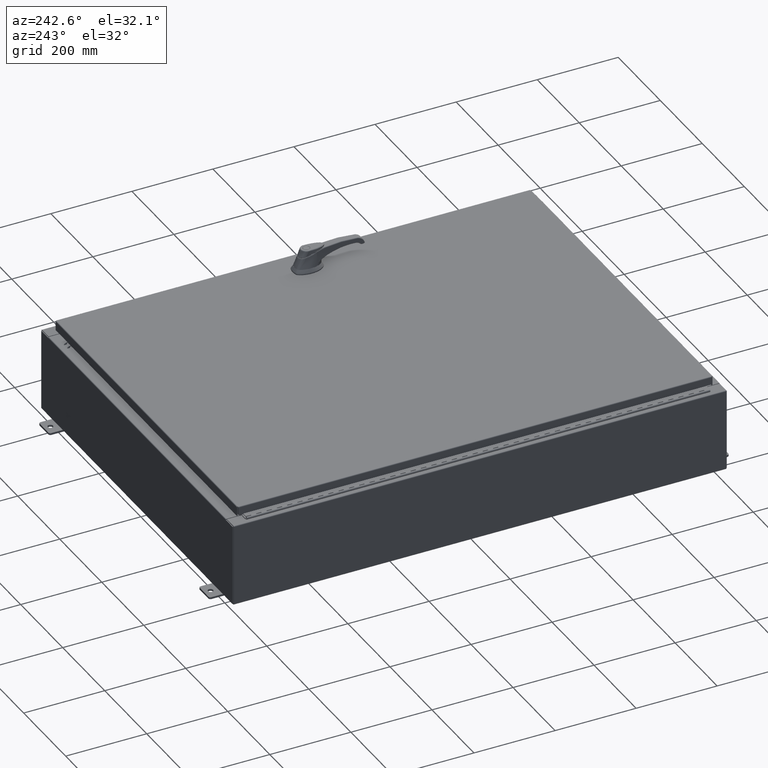
[diagram: clean part render]
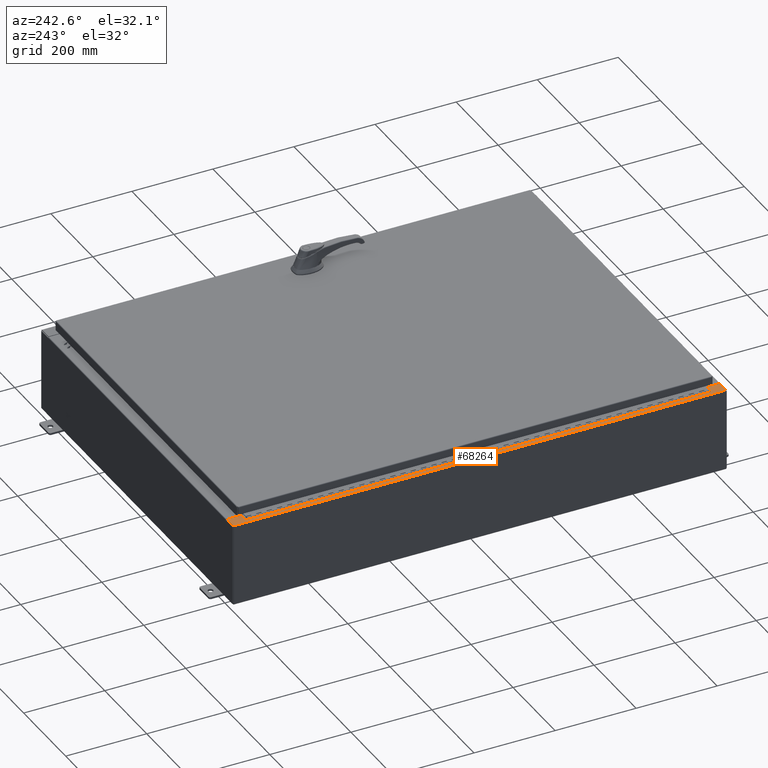
[diagram: same view with one face highlighted and labeled with its STEP entity id]
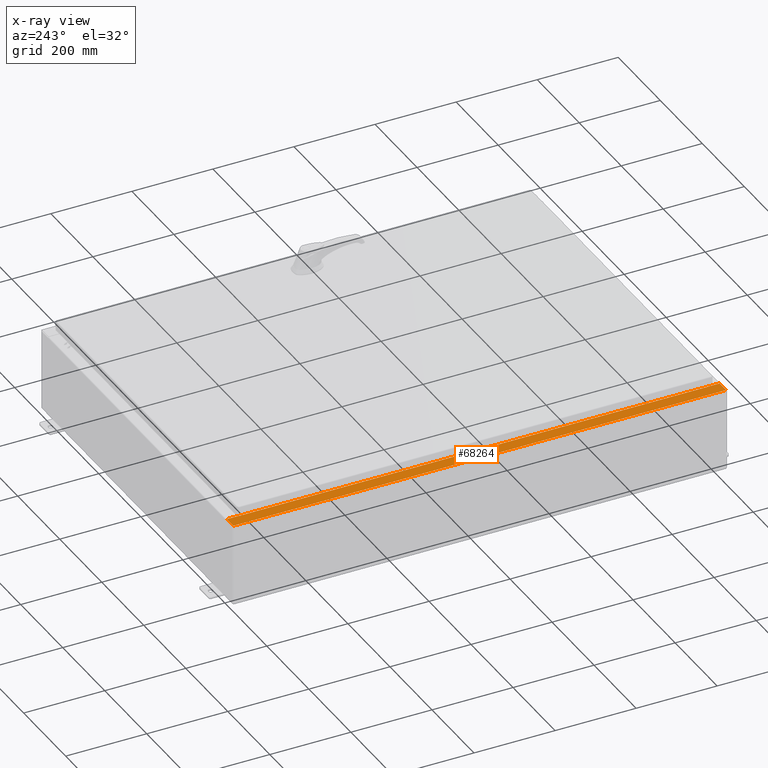
[diagram: x-ray of the same camera — body ghosted, the highlighted face saturated]
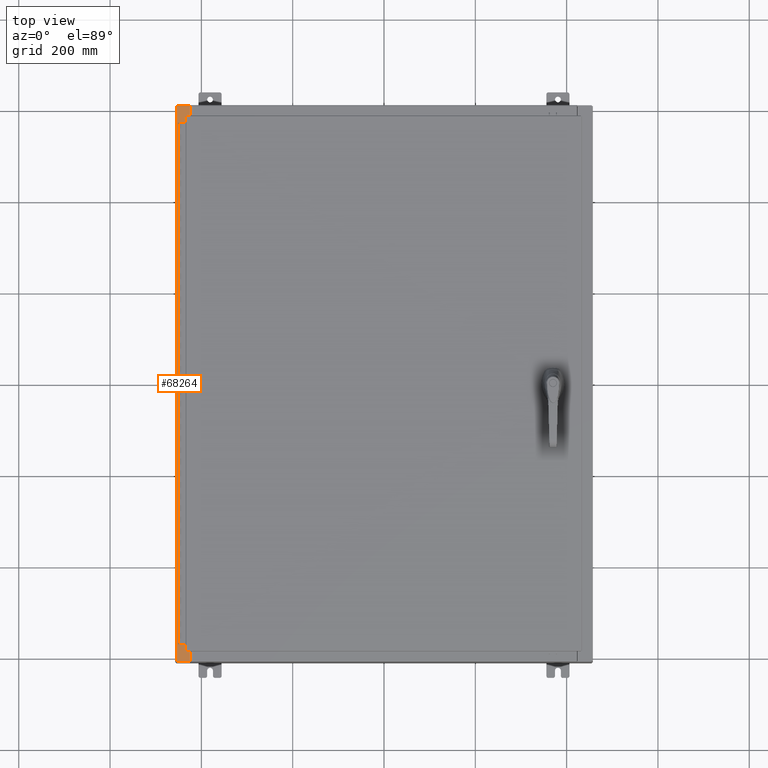
[diagram: same view with one face highlighted and labeled with its STEP entity id]
A machine part, auxiliary view. The second image highlights one B-rep face of the part: STEP entity #68264.
The next image is the same camera in x-ray: the body ghosted, the highlighted face saturated — about 0% of this face is hidden behind the body in this view.
A second angle (top view) of the same face is appended — the face is thin or edge-on in the first view.
In plain terms, the highlighted planar face has unit normal (0, 0, -1).
Its self-contained STEP definition (entity closure, byte-faithful):
#6 = ORIENTED_EDGE ( 'NONE', *, *, #49718, .F. ) ;
#2529 = VECTOR ( 'NONE', #53368, 39.37007874015748100 ) ;
#2785 = DIRECTION ( 'NONE',  ( 1.000000000000000000, 0.0000000000000000000, 0.0000000000000000000 ) ) ;
#4387 = AXIS2_PLACEMENT_3D ( 'NONE', #88872, #26740, #99336 ) ;
#8005 = CARTESIAN_POINT ( 'NONE',  ( -16.71270000000003400, 22.59374999999999300, 7.925300000000010700 ) ) ;
#10098 = EDGE_CURVE ( 'NONE', #55001, #114837, #109624, .T. ) ;
#10936 = CARTESIAN_POINT ( 'NONE',  ( -1.421168353416399100E-013, -23.92530000000005300, 7.925300000000127900 ) ) ;
#13496 = ORIENTED_EDGE ( 'NONE', *, *, #34460, .T. ) ;
#13978 = DIRECTION ( 'NONE',  ( -1.000000000000000000, -8.681145560800197900E-014, 2.170286390200049500E-014 ) ) ;
#16505 = EDGE_CURVE ( 'NONE', #120052, #20110, #25897, .T. ) ;
#16922 = AXIS2_PLACEMENT_3D ( 'NONE', #74960, #96369, #34199 ) ;
#17794 = VECTOR ( 'NONE', #94452, 39.37007874015748100 ) ;
#19841 = EDGE_CURVE ( 'NONE', #131938, #109818, #103211, .T. ) ;
#20029 = CIRCLE ( 'NONE', #4387, 0.01867499999999949400 ) ;
#20110 = VERTEX_POINT ( 'NONE', #78504 ) ;
#21037 = LINE ( 'NONE', #32281, #17794 ) ;
#22797 = DIRECTION ( 'NONE',  ( 1.000000000000000000, 0.0000000000000000000, 0.0000000000000000000 ) ) ;
#23756 = PLANE ( 'NONE',  #16922 ) ;
#24011 = ORIENTED_EDGE ( 'NONE', *, *, #90813, .F. ) ;
#24886 = LINE ( 'NONE', #94283, #73498 ) ;
#25788 = CARTESIAN_POINT ( 'NONE',  ( -16.69970000000003600, 22.63109999999999600, 7.925300000000009800 ) ) ;
#25897 = LINE ( 'NONE', #25788, #119938 ) ;
#26740 = DIRECTION ( 'NONE',  ( -7.132762385546384700E-015, -0.0000000000000000000, 1.000000000000000000 ) ) ;
#26831 = DIRECTION ( 'NONE',  ( 0.0000000000000000000, 1.000000000000000000, 0.0000000000000000000 ) ) ;
#27298 = CARTESIAN_POINT ( 'NONE',  ( -16.69970000000003600, 0.0000000000000000000, 7.925300000000008900 ) ) ;
#31048 = VECTOR ( 'NONE', #125236, 39.37007874015748100 ) ;
#32039 = VECTOR ( 'NONE', #26831, 39.37007874015748100 ) ;
#32112 = DIRECTION ( 'NONE',  ( -0.0000000000000000000, -1.000000000000000000, -0.0000000000000000000 ) ) ;
#32281 = CARTESIAN_POINT ( 'NONE',  ( -5.679009539018325600E-014, 23.92529999999998900, 7.925300000000127900 ) ) ;
#33946 = ORIENTED_EDGE ( 'NONE', *, *, #50122, .F. ) ;
#34199 = DIRECTION ( 'NONE',  ( -1.000000000000000000, 0.0000000000000000000, -7.132762385546384700E-015 ) ) ;
#34460 = EDGE_CURVE ( 'NONE', #126016, #121210, #59557, .T. ) ;
#35375 = ORIENTED_EDGE ( 'NONE', *, *, #35727, .F. ) ;
#35727 = EDGE_CURVE ( 'NONE', #133061, #121210, #55188, .T. ) ;
#36686 = VECTOR ( 'NONE', #22797, 39.37007874015748100 ) ;
#40545 = CARTESIAN_POINT ( 'NONE',  ( -16.69970000000003600, 0.0000000000000000000, 7.925300000000008900 ) ) ;
#49718 = EDGE_CURVE ( 'NONE', #20110, #131938, #20029, .T. ) ;
#50122 = EDGE_CURVE ( 'NONE', #109818, #55001, #24886, .T. ) ;
#50510 = CARTESIAN_POINT ( 'NONE',  ( -16.75005000000003400, -22.63109999999998200, 7.925300000000010700 ) ) ;
#53368 = DIRECTION ( 'NONE',  ( -1.000000000000000000, 0.0000000000000000000, 0.0000000000000000000 ) ) ;
#55001 = VERTEX_POINT ( 'NONE', #105434 ) ;
#55188 = LINE ( 'NONE', #50510, #107175 ) ;
#57985 = VERTEX_POINT ( 'NONE', #110871 ) ;
#59557 = LINE ( 'NONE', #27298, #32039 ) ;
#61110 = EDGE_CURVE ( 'NONE', #120052, #124782, #71594, .T. ) ;
#61448 = ORIENTED_EDGE ( 'NONE', *, *, #61110, .T. ) ;
#62079 = CARTESIAN_POINT ( 'NONE',  ( -16.69970000000003600, 22.63109999999999600, 7.925300000000008900 ) ) ;
#63066 = CARTESIAN_POINT ( 'NONE',  ( -17.91230000000003400, 23.92529999999998900, 7.925300000000000000 ) ) ;
#64867 = DIRECTION ( 'NONE',  ( -7.132762385546384700E-015, -0.0000000000000000000, 1.000000000000000000 ) ) ;
#64893 = ORIENTED_EDGE ( 'NONE', *, *, #110939, .T. ) ;
#67117 = AXIS2_PLACEMENT_3D ( 'NONE', #127048, #64867, #2785 ) ;
#67205 = CARTESIAN_POINT ( 'NONE',  ( -16.69970000000003600, -22.63109999999999600, 7.925300000000008900 ) ) ;
#67466 = LINE ( 'NONE', #10936, #119404 ) ;
#67956 = ORIENTED_EDGE ( 'NONE', *, *, #10098, .F. ) ;
#68264 = ADVANCED_FACE ( 'NONE', ( #83917 ), #23756, .F. ) ;
#71594 = LINE ( 'NONE', #40545, #92754 ) ;
#72395 = CARTESIAN_POINT ( 'NONE',  ( -16.75005000000003400, -22.63109999999998200, 7.925300000000008900 ) ) ;
#73498 = VECTOR ( 'NONE', #32112, 39.37007874015748100 ) ;
#74213 = CARTESIAN_POINT ( 'NONE',  ( -16.71270000000003400, -22.59374999999998200, 7.925300000000010700 ) ) ;
#74960 = CARTESIAN_POINT ( 'NONE',  ( -5.679009539018325600E-014, 0.0000000000000000000, 7.925300000000127900 ) ) ;
#78504 = CARTESIAN_POINT ( 'NONE',  ( -16.75005000000003400, 22.63109999999999300, 7.925300000000008900 ) ) ;
#82267 = EDGE_LOOP ( 'NONE', ( #115158, #61448, #64893, #119289, #129221, #13496, #35375, #24011, #67956, #33946, #85324, #6 ) ) ;
#83135 = CARTESIAN_POINT ( 'NONE',  ( -16.69970000000003600, 23.92529999999998900, 7.925300000000008900 ) ) ;
#83510 = DIRECTION ( 'NONE',  ( 1.000000000000000000, -3.566381192773192400E-015, 7.132762385546384700E-015 ) ) ;
#83917 = FACE_OUTER_BOUND ( 'NONE', #82267, .T. ) ;
#85324 = ORIENTED_EDGE ( 'NONE', *, *, #19841, .F. ) ;
#86231 = LINE ( 'NONE', #63066, #31048 ) ;
#88872 = CARTESIAN_POINT ( 'NONE',  ( -16.75005000000003400, 22.61242499999999100, 7.925300000000010700 ) ) ;
#89348 = CIRCLE ( 'NONE', #67117, 0.01867499999999949400 ) ;
#89536 = CARTESIAN_POINT ( 'NONE',  ( -16.75005000000003400, -22.59374999999998200, 7.925300000000008900 ) ) ;
#89993 = EDGE_CURVE ( 'NONE', #98428, #57985, #86231, .T. ) ;
#90813 = EDGE_CURVE ( 'NONE', #114837, #133061, #89348, .T. ) ;
#92754 = VECTOR ( 'NONE', #113098, 39.37007874015748100 ) ;
#94283 = CARTESIAN_POINT ( 'NONE',  ( -16.71270000000003400, 22.59374999999999300, 7.925300000000010700 ) ) ;
#94452 = DIRECTION ( 'NONE',  ( -1.000000000000000000, 0.0000000000000000000, -7.132762385546384700E-015 ) ) ;
#94947 = CARTESIAN_POINT ( 'NONE',  ( -16.75005000000003400, 22.59374999999999300, 7.925300000000010700 ) ) ;
#96369 = DIRECTION ( 'NONE',  ( 7.132762385546384700E-015, 0.0000000000000000000, -1.000000000000000000 ) ) ;
#97273 = CARTESIAN_POINT ( 'NONE',  ( -16.75005000000003400, 22.59374999999999300, 7.925300000000008900 ) ) ;
#98428 = VERTEX_POINT ( 'NONE', #112251 ) ;
#99336 = DIRECTION ( 'NONE',  ( 1.000000000000000000, 0.0000000000000000000, 0.0000000000000000000 ) ) ;
#103211 = LINE ( 'NONE', #94947, #36686 ) ;
#105434 = CARTESIAN_POINT ( 'NONE',  ( -16.71270000000003400, -22.59374999999998200, 7.925300000000010700 ) ) ;
#107175 = VECTOR ( 'NONE', #133552, 39.37007874015748100 ) ;
#109624 = LINE ( 'NONE', #74213, #2529 ) ;
#109818 = VERTEX_POINT ( 'NONE', #8005 ) ;
#110871 = CARTESIAN_POINT ( 'NONE',  ( -17.91230000000003400, 23.92529999999998900, 7.925300000000000000 ) ) ;
#110939 = EDGE_CURVE ( 'NONE', #124782, #57985, #21037, .T. ) ;
#112251 = CARTESIAN_POINT ( 'NONE',  ( -17.91230000000003400, -23.92529999999998600, 7.925300000000000000 ) ) ;
#113098 = DIRECTION ( 'NONE',  ( 0.0000000000000000000, 1.000000000000000000, 0.0000000000000000000 ) ) ;
#114837 = VERTEX_POINT ( 'NONE', #89536 ) ;
#115158 = ORIENTED_EDGE ( 'NONE', *, *, #16505, .F. ) ;
#118651 = EDGE_CURVE ( 'NONE', #98428, #126016, #67466, .T. ) ;
#119289 = ORIENTED_EDGE ( 'NONE', *, *, #89993, .F. ) ;
#119404 = VECTOR ( 'NONE', #83510, 39.37007874015748100 ) ;
#119938 = VECTOR ( 'NONE', #13978, 39.37007874015748100 ) ;
#120052 = VERTEX_POINT ( 'NONE', #62079 ) ;
#121210 = VERTEX_POINT ( 'NONE', #67205 ) ;
#121403 = CARTESIAN_POINT ( 'NONE',  ( -16.69970000000003600, -23.92529999999998600, 7.925300000000008900 ) ) ;
#124782 = VERTEX_POINT ( 'NONE', #83135 ) ;
#125236 = DIRECTION ( 'NONE',  ( -0.0000000000000000000, 1.000000000000000000, -0.0000000000000000000 ) ) ;
#126016 = VERTEX_POINT ( 'NONE', #121403 ) ;
#127048 = CARTESIAN_POINT ( 'NONE',  ( -16.75005000000003400, -22.61242499999998400, 7.925300000000010700 ) ) ;
#129221 = ORIENTED_EDGE ( 'NONE', *, *, #118651, .T. ) ;
#131938 = VERTEX_POINT ( 'NONE', #97273 ) ;
#133061 = VERTEX_POINT ( 'NONE', #72395 ) ;
#133552 = DIRECTION ( 'NONE',  ( 1.000000000000000000, -8.681145560800197900E-014, -2.170286390200049500E-014 ) ) ;